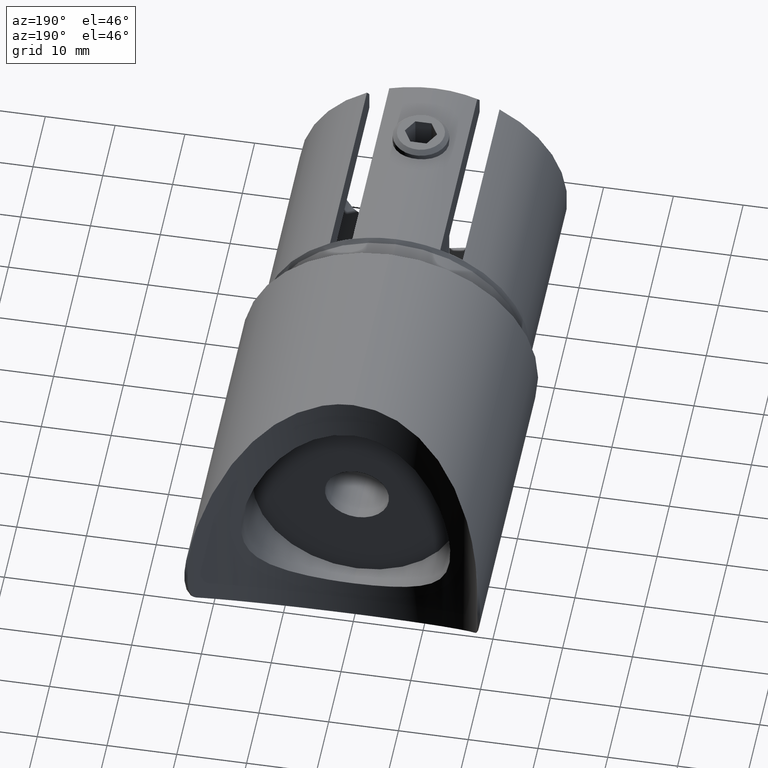
[diagram: clean part render]
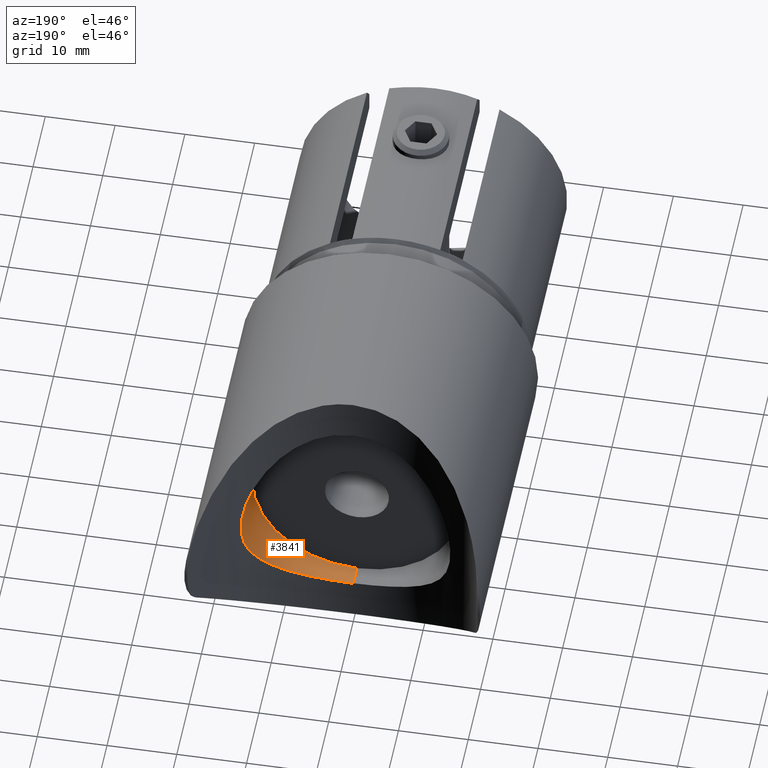
[diagram: same view with one face highlighted and labeled with its STEP entity id]
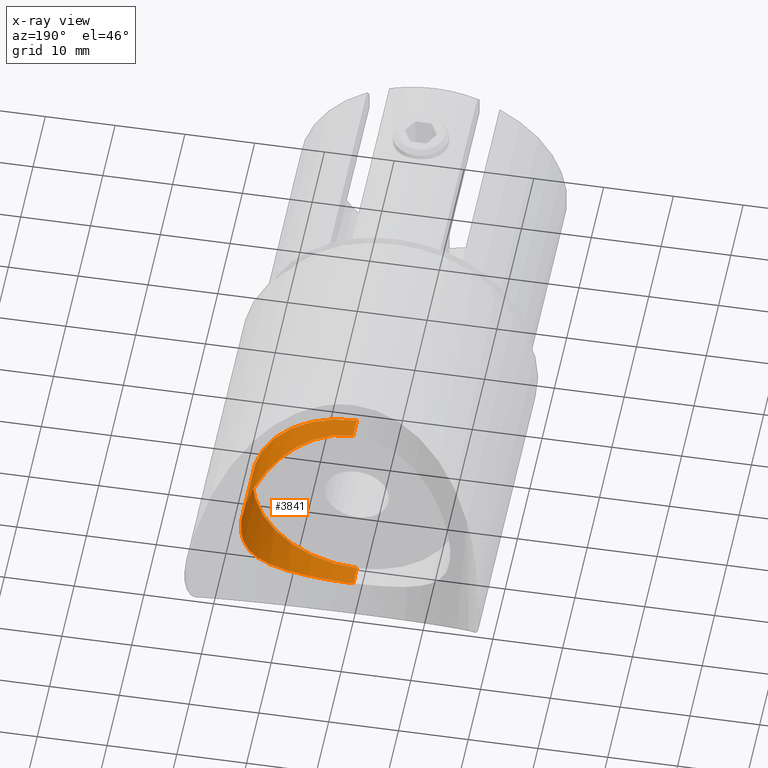
[diagram: x-ray of the same camera — body ghosted, the highlighted face saturated]
A machine part, auxiliary view. The second image highlights one B-rep face of the part: STEP entity #3841.
The next image is the same camera in x-ray: the body ghosted, the highlighted face saturated — about 0% of this face is hidden behind the body in this view.
In plain terms, the highlighted cylindrical surface (partial cylindrical patch) has radius 15 mm, axis along (0, -1, 0).
Its self-contained STEP definition (entity closure, byte-faithful):
#448 = CARTESIAN_POINT ( 'NONE',  ( 11.32503118745980300, 33.26176884759856700, 9.881486462733672500 ) ) ;
#542 = CARTESIAN_POINT ( 'NONE',  ( 2.532839929336291100, 30.14578938378287300, 14.79341789719770600 ) ) ;
#625 = CARTESIAN_POINT ( 'NONE',  ( 14.19205193869790300, 35.44332310198384300, 4.952051566180125900 ) ) ;
#727 = CARTESIAN_POINT ( 'NONE',  ( 13.99335161939707300, 35.27241271355455900, -5.423943991861517800 ) ) ;
#770 = CARTESIAN_POINT ( 'NONE',  ( 14.45986925495791600, 35.69539613792806400, -4.019731287298893300 ) ) ;
#818 = CARTESIAN_POINT ( 'NONE',  ( 2.041211909607547600, 30.09239388840269700, -14.86917607280102000 ) ) ;
#890 = AXIS2_PLACEMENT_3D ( 'NONE', #13047, #8656, #5578 ) ;
#1031 = ORIENTED_EDGE ( 'NONE', *, *, #2978, .T. ) ;
#1217 = VECTOR ( 'NONE', #11374, 1000.000000000000000 ) ;
#1268 = DIRECTION ( 'NONE',  ( 0.0000000000000000000, -1.000000000000000000, 0.0000000000000000000 ) ) ;
#1465 = CARTESIAN_POINT ( 'NONE',  ( 8.063616169286936100, 31.58864928991236800, 12.65735501310084200 ) ) ;
#1518 = CARTESIAN_POINT ( 'NONE',  ( 12.71110830410404100, 34.23020665795324600, 7.978165236042699800 ) ) ;
#1603 = CARTESIAN_POINT ( 'NONE',  ( 4.984109449640189200, 30.57246874276022200, 14.18226937842678800 ) ) ;
#1606 = EDGE_CURVE ( 'NONE', #3665, #6339, #6663, .T. ) ;
#1692 = CARTESIAN_POINT ( 'NONE',  ( 13.41665539765794100, 34.78296027227042200, 6.724959491140768200 ) ) ;
#1733 = CARTESIAN_POINT ( 'NONE',  ( 13.62634909985529100, 34.95732745255058700, 6.289427513301535400 ) ) ;
#1828 = CARTESIAN_POINT ( 'NONE',  ( 9.959336745933525100, 32.48045640707162100, -11.22675104208462000 ) ) ;
#1872 = CARTESIAN_POINT ( 'NONE',  ( 13.42676151907878100, 34.78629291246274100, -6.756797095778320100 ) ) ;
#2373 = CARTESIAN_POINT ( 'NONE',  ( 1.836970198721029600E-015, 27.00000000000000000, 15.00000000000000000 ) ) ;
#2580 = CARTESIAN_POINT ( 'NONE',  ( 0.0000000000000000000, 47.05786437626905200, -15.00000000000000000 ) ) ;
#2847 = CARTESIAN_POINT ( 'NONE',  ( 7.647301505249490800, 31.40838195954905000, -12.93992218129629500 ) ) ;
#2978 = EDGE_CURVE ( 'NONE', #9446, #3541, #9586, .T. ) ;
#3527 = CARTESIAN_POINT ( 'NONE',  ( 9.970519523804245700, 32.48643068549604600, 11.21678604982198700 ) ) ;
#3541 = VERTEX_POINT ( 'NONE', #13219 ) ;
#3657 = CARTESIAN_POINT ( 'NONE',  ( 7.651717528125239200, 31.42377543573786300, 12.91086326727037400 ) ) ;
#3665 = VERTEX_POINT ( 'NONE', #2373 ) ;
#3751 = CARTESIAN_POINT ( 'NONE',  ( 14.97263799038234700, 36.19115045515659500, -1.038934556891293800 ) ) ;
#3800 = CARTESIAN_POINT ( 'NONE',  ( 6.802766067351388600, 31.09920407952170900, -13.40456851880296400 ) ) ;
#3841 = ADVANCED_FACE ( 'NONE', ( #7064 ), #6394, .F. ) ;
#3845 = CARTESIAN_POINT ( 'NONE',  ( 11.90498977875691900, 33.64593844104532400, -9.175073987099700900 ) ) ;
#3942 = CARTESIAN_POINT ( 'NONE',  ( 1.028825825456380500, 30.01889759141093700, -14.97332496691219100 ) ) ;
#4697 = CARTESIAN_POINT ( 'NONE',  ( 10.32358387329569600, 32.67939706490337700, 10.89259576678398900 ) ) ;
#4746 = CARTESIAN_POINT ( 'NONE',  ( 2.027758882697914700, 30.09111478436073400, 14.87099088058241500 ) ) ;
#4861 = CARTESIAN_POINT ( 'NONE',  ( 0.0000000000000000000, 27.00000000000000000, -15.00000000000000000 ) ) ;
#4974 = CARTESIAN_POINT ( 'NONE',  ( 11.30616658011460100, 33.25002028211940800, -9.902568869757317300 ) ) ;
#5266 = CARTESIAN_POINT ( 'NONE',  ( 1.836970429265563700E-015, 29.99999999999999600, 15.00000000000000000 ) ) ;
#5578 = DIRECTION ( 'NONE',  ( 0.0000000000000000000, 0.0000000000000000000, -1.000000000000000000 ) ) ;
#5604 = CARTESIAN_POINT ( 'NONE',  ( 1.836970429265563700E-015, 29.99999999999999600, 15.00000000000000000 ) ) ;
#5927 = CARTESIAN_POINT ( 'NONE',  ( 14.89680169544232800, 36.11339362418424800, 2.028434272794916300 ) ) ;
#5967 = CARTESIAN_POINT ( 'NONE',  ( 0.5158686163574068800, 30.00000000000000700, -15.00000000000000400 ) ) ;
#6016 = CARTESIAN_POINT ( 'NONE',  ( 10.30865992864121900, 32.67112188695622200, -10.90660802976908700 ) ) ;
#6168 = DIRECTION ( 'NONE',  ( 0.0000000000000000000, 0.0000000000000000000, 1.000000000000000000 ) ) ;
#6215 = ORIENTED_EDGE ( 'NONE', *, *, #10138, .F. ) ;
#6313 = ORIENTED_EDGE ( 'NONE', *, *, #6387, .T. ) ;
#6339 = VERTEX_POINT ( 'NONE', #4861 ) ;
#6387 = EDGE_CURVE ( 'NONE', #3541, #6339, #12955, .T. ) ;
#6394 = CYLINDRICAL_SURFACE ( 'NONE', #890, 15.00000000000000000 ) ;
#6648 = CARTESIAN_POINT ( 'NONE',  ( 8.856598920751215700, 31.93376949279935700, 12.11574171110473900 ) ) ;
#6663 = CIRCLE ( 'NONE', #9159, 15.00000000000000000 ) ;
#6823 = CARTESIAN_POINT ( 'NONE',  ( 4.986994897163699900, 30.58904676983032200, -14.15568298008696500 ) ) ;
#6961 = CARTESIAN_POINT ( 'NONE',  ( 6.602404107325107800E-017, 29.99999999999999600, -15.00000000000000000 ) ) ;
#7014 = CARTESIAN_POINT ( 'NONE',  ( 12.97177757673857500, 34.41885446855610600, -7.592348174358354700 ) ) ;
#7064 = FACE_OUTER_BOUND ( 'NONE', #13330, .T. ) ;
#7732 = CARTESIAN_POINT ( 'NONE',  ( 11.91986201499825000, 33.65629653963712500, 9.154805784529443700 ) ) ;
#7906 = CARTESIAN_POINT ( 'NONE',  ( 5.451559102240884700, 30.70755238982588200, -13.98286537839695900 ) ) ;
#7956 = CARTESIAN_POINT ( 'NONE',  ( 14.16270661145239100, 35.42348893994063300, -4.966266196096395200 ) ) ;
#8047 = CARTESIAN_POINT ( 'NONE',  ( 14.86771696438603200, 36.08720921478450800, -2.051893192018418700 ) ) ;
#8482 = CARTESIAN_POINT ( 'NONE',  ( 1.836970198721029600E-015, 47.05786437626905200, 15.00000000000000000 ) ) ;
#8656 = DIRECTION ( 'NONE',  ( 0.0000000000000000000, -1.000000000000000000, 0.0000000000000000000 ) ) ;
#8727 = CARTESIAN_POINT ( 'NONE',  ( 9.237675004037145100, 32.11402880168019900, 11.82763329588087800 ) ) ;
#8774 = CARTESIAN_POINT ( 'NONE',  ( 12.95786228054332200, 34.41847323394478800, 7.571362317011448800 ) ) ;
#8820 = CARTESIAN_POINT ( 'NONE',  ( 0.5093677938706754300, 29.99999999999999600, 15.00000000000000700 ) ) ;
#8959 = CARTESIAN_POINT ( 'NONE',  ( 9.224596124947247200, 32.10768408290769600, -11.83786947518251900 ) ) ;
#9084 = CARTESIAN_POINT ( 'NONE',  ( 4.022094626891260700, 30.38354445861952200, -14.45292079249893500 ) ) ;
#9138 = CARTESIAN_POINT ( 'NONE',  ( 8.838415095897060400, 31.92541155211238300, -12.12901975368033400 ) ) ;
#9159 = AXIS2_PLACEMENT_3D ( 'NONE', #10324, #10363, #6168 ) ;
#9196 = LINE ( 'NONE', #8482, #11286 ) ;
#9446 = VERTEX_POINT ( 'NONE', #5266 ) ;
#9586 = B_SPLINE_CURVE_WITH_KNOTS ( 'NONE', 3,
 ( #5604, #8820, #12980, #4746, #542, #12049, #1603, #9854, #9889, #3657, #1465, #6648, #8727, #3527, #4697, #448, #7732, #1518, #8774, #1692, #1733, #625, #13305, #5927, #12245, #12292, #3751, #8047, #10020, #10068, #770, #7956, #727, #1872, #7014, #3845, #4974, #6016, #1828, #8959, #9138, #2847, #3800, #7906, #6823, #13214, #9084, #10113, #10160, #11070, #818, #3942, #5967, #6961 ),
 .UNSPECIFIED., .F., .F.,
 ( 4, 2, 2, 2, 2, 2, 2, 2, 2, 2, 2, 2, 2, 2, 2, 2, 2, 2, 2, 2, 2, 2, 2, 2, 2, 2, 4 ),
 ( 0.04880195201534786400, 0.05032462339735615400, 0.05184729477936444300, 0.05489263754338101500, 0.05641530892538930400, 0.05793798030739759400, 0.05946065168940588300, 0.06098332307141417200, 0.06402866583543076500, 0.06555133721743905400, 0.06707400859944734300, 0.07011935136346390800, 0.07316469412748047300, 0.07468736550948876200, 0.07621003689149703800, 0.07773270827350532700, 0.07925537965551360300, 0.08230072241953018100, 0.08534606518354673200, 0.08686873656555502100, 0.08839140794756331100, 0.09143675071157986200, 0.09295942209358813700, 0.09372075778459228200, 0.09448209347559641300, 0.09600476485760470200, 0.09752743623961297700 ),
 .UNSPECIFIED. ) ;
#9854 = CARTESIAN_POINT ( 'NONE',  ( 6.348298783534331400, 30.96727401587774500, 13.59939816635428600 ) ) ;
#9889 = CARTESIAN_POINT ( 'NONE',  ( 6.794484387249480200, 31.11311818480113400, 13.38185911403171400 ) ) ;
#10020 = CARTESIAN_POINT ( 'NONE',  ( 14.79009636119930300, 36.01076182993652700, -2.550444006374961200 ) ) ;
#10068 = CARTESIAN_POINT ( 'NONE',  ( 14.58661984286887400, 35.81525339434871600, -3.533020883442236700 ) ) ;
#10113 = CARTESIAN_POINT ( 'NONE',  ( 3.531802928671223800, 30.29477494579484200, -14.58048465226533400 ) ) ;
#10138 = EDGE_CURVE ( 'NONE', #9446, #3665, #9196, .T. ) ;
#10160 = CARTESIAN_POINT ( 'NONE',  ( 3.285343998584551200, 30.25461401306813200, -14.63798253205001400 ) ) ;
#10324 = CARTESIAN_POINT ( 'NONE',  ( 0.0000000000000000000, 27.00000000000000000, 0.0000000000000000000 ) ) ;
#10363 = DIRECTION ( 'NONE',  ( 0.0000000000000000000, 1.000000000000000000, 0.0000000000000000000 ) ) ;
#11070 = CARTESIAN_POINT ( 'NONE',  ( 2.542018403632998700, 30.14699879451912800, -14.79169407559993800 ) ) ;
#11286 = VECTOR ( 'NONE', #1268, 1000.000000000000000 ) ;
#11374 = DIRECTION ( 'NONE',  ( 0.0000000000000000000, -1.000000000000000000, 0.0000000000000000000 ) ) ;
#12049 = CARTESIAN_POINT ( 'NONE',  ( 4.032369674837299900, 30.36252784227097100, 14.48385168249562800 ) ) ;
#12245 = CARTESIAN_POINT ( 'NONE',  ( 15.00048775688430600, 36.21916666085263600, 1.019177693972263400 ) ) ;
#12292 = CARTESIAN_POINT ( 'NONE',  ( 14.99975356287486000, 36.21843155163789200, -0.5203192117389312500 ) ) ;
#12955 = LINE ( 'NONE', #2580, #1217 ) ;
#12980 = CARTESIAN_POINT ( 'NONE',  ( 1.016785370421005500, 30.01833366696822100, 14.97412178951485000 ) ) ;
#13047 = CARTESIAN_POINT ( 'NONE',  ( 0.0000000000000000000, 47.05786437626905200, 0.0000000000000000000 ) ) ;
#13214 = CARTESIAN_POINT ( 'NONE',  ( 4.266687534526877100, 30.43233871441327300, -14.38258485693646400 ) ) ;
#13219 = CARTESIAN_POINT ( 'NONE',  ( 6.602404107325107800E-017, 29.99999999999999600, -15.00000000000000000 ) ) ;
#13227 = ORIENTED_EDGE ( 'NONE', *, *, #1606, .F. ) ;
#13305 = CARTESIAN_POINT ( 'NONE',  ( 14.48799868008896000, 35.72039125372095500, 4.015861127843308500 ) ) ;
#13330 = EDGE_LOOP ( 'NONE', ( #6215, #1031, #6313, #13227 ) ) ;